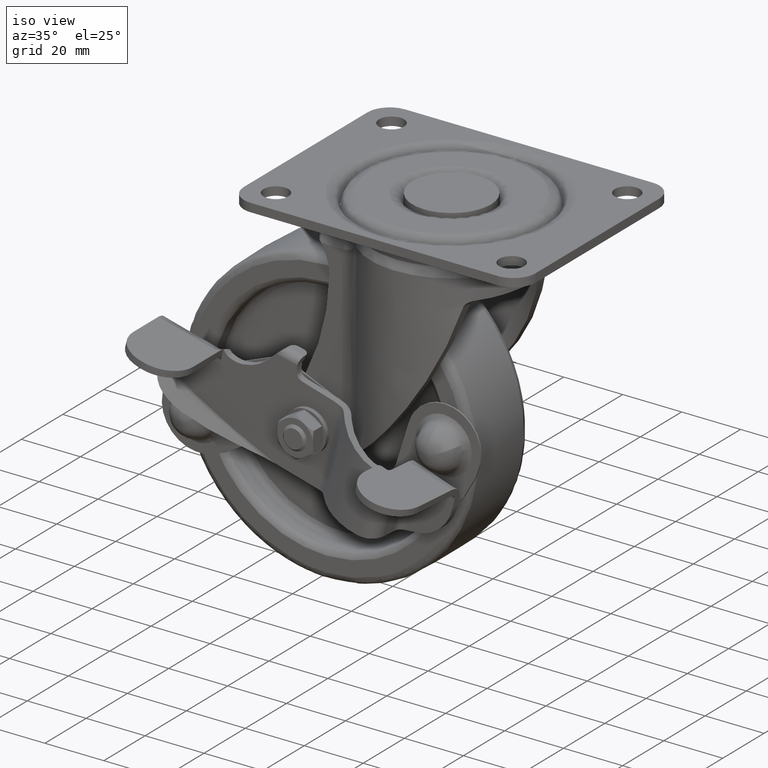
[diagram: clean part render]
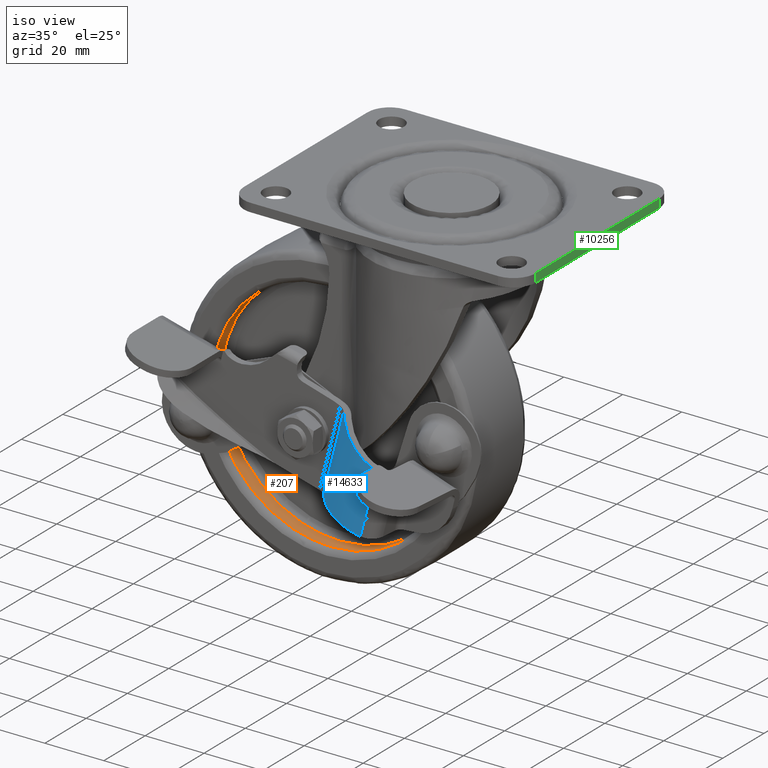
[diagram: same view with three faces highlighted in distinct colors, each labeled with its STEP entity id]
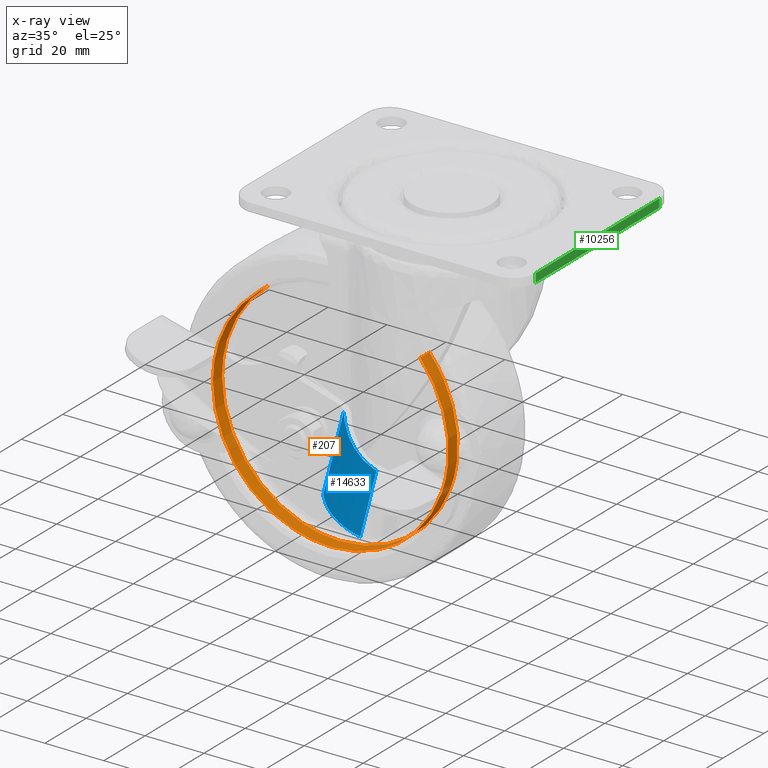
[diagram: x-ray of the same camera — body ghosted, the three highlighted faces saturated]
A machine part, iso view with three faces highlighted in distinct colors.
The next image is the same camera in x-ray (body ghosted, the three faces saturated) — at least one of them is partly hidden behind the body in this view.
Their STEP definitions:

[orange] entity #207 — the highlighted face is a freeform B-spline surface patch.
#44=CARTESIAN_POINT('',(-57.195413265717157,-6.887499999548891,-41.147604258645742));
#45=CARTESIAN_POINT('',(-58.107009251488449,-6.887499999548891,-41.840078411140524));
#46=CARTESIAN_POINT('',(-58.977508933207417,-6.887499999548891,-42.583555375998777));
#47=CARTESIAN_POINT('',(-89.393747557208656,-6.887499999548890,-68.561477309206111));
#48=CARTESIAN_POINT('',(-63.415825624001322,-6.887499999548891,-98.977715933207350));
#49=CARTESIAN_POINT('',(-37.437903690793995,-6.887499999548890,-129.393954557208590));
#50=CARTESIAN_POINT('',(-7.021665066792757,-6.887499999548891,-103.416032624001300));
#51=CARTESIAN_POINT('',(23.394573557208485,-6.887499999548890,-77.438110690793920));
#52=CARTESIAN_POINT('',(-2.583348375998860,-6.887499999548891,-47.021872066792682));
#53=CARTESIAN_POINT('',(-57.195413265717157,-11.615312501448374,-41.147604258645742));
#54=CARTESIAN_POINT('',(-58.107009251488449,-11.615312501448374,-41.840078411140524));
#55=CARTESIAN_POINT('',(-58.977508933207417,-11.615312501448370,-42.583555375998777));
#56=CARTESIAN_POINT('',(-89.393747557208656,-11.615312501448374,-68.561477309206111));
#57=CARTESIAN_POINT('',(-63.415825624001322,-11.615312501448370,-98.977715933207350));
#58=CARTESIAN_POINT('',(-37.437903690793995,-11.615312501448374,-129.393954557208590));
#59=CARTESIAN_POINT('',(-7.021665066792757,-11.615312501448370,-103.416032624001300));
#60=CARTESIAN_POINT('',(23.394573557208485,-11.615312501448374,-77.438110690793920));
#61=CARTESIAN_POINT('',(-2.583348375998860,-11.615312501448370,-47.021872066792682));
#69=(BOUNDED_SURFACE()B_SPLINE_SURFACE(2,1,((#44,#53),(#45,#54),(#46,#55),(#47,#56),(#48,#57),(#49,#58),(#50,#59),(#51,#60),(#52,#61)),.UNSPECIFIED.,.F.,.F.,.U.)B_SPLINE_SURFACE_WITH_KNOTS((3,2,2,2,3),(2,2),(0.0,2.650966799187811,68.925136778883001,135.199306758578190,201.473476738273400),(0.0,4.727812501899481),.UNSPECIFIED.)GEOMETRIC_REPRESENTATION_ITEM()RATIONAL_B_SPLINE_SURFACE(((0.977505800795127,0.977505800795127),(0.988284271247462,0.988284271247462),(1.0,1.0),(0.707106781186548,0.707106781186548),(1.0,1.0),(0.707106781186548,0.707106781186548),(1.0,1.0),(0.707106781186548,0.707106781186548),(1.0,1.0)))REPRESENTATION_ITEM('')SURFACE());
#70=CARTESIAN_POINT('',(-57.195413340590051,-6.999999999928793,-41.147604315521257));
#71=VERTEX_POINT('',#70);
#72=CARTESIAN_POINT('',(-72.999587000000076,-6.999999999650401,-72.999794000000009));
#73=VERTEX_POINT('',#72);
#74=CARTESIAN_POINT('',(-57.195413340590051,-6.999999999928793,-41.147604315521257));
#75=CARTESIAN_POINT('',(-59.640969421616703,-6.999999999912602,-43.004448923106636));
#76=CARTESIAN_POINT('',(-63.333869706376333,-6.999999999881532,-46.549802614734013));
#77=CARTESIAN_POINT('',(-67.833106346299132,-6.999999999825969,-52.914736289219817));
#78=CARTESIAN_POINT('',(-70.743465383803525,-6.999999999771743,-59.112809435374999));
#79=CARTESIAN_POINT('',(-72.592599236844549,-6.999999999710838,-66.091167120750299));
#80=CARTESIAN_POINT('',(-72.999845736485341,-6.999999999671267,-70.600917400487859));
#81=CARTESIAN_POINT('',(-72.999587000000076,-6.999999999650401,-72.999794000000009));
#82=B_SPLINE_CURVE_WITH_KNOTS('',3,(#74,#75,#76,#77,#78,#79,#80,#81),.UNSPECIFIED.,.F.,.U.,(4,1,1,1,1,4),(0.000000072693418,9.211635541973998,15.256788921254310,23.316940702688932,29.649951792193960,36.846539430953463),.UNSPECIFIED.);
#83=EDGE_CURVE('',#71,#73,#82,.T.);
#84=ORIENTED_EDGE('',*,*,#83,.F.);
#85=CARTESIAN_POINT('',(-57.195413339687967,-11.500000000272371,-41.147604314836023));
#86=VERTEX_POINT('',#85);
#87=CARTESIAN_POINT('',(-57.195413340590051,-6.999999999928793,-41.147604315521257));
#88=CARTESIAN_POINT('',(-57.195413339687967,-11.500000000272371,-41.147604314836023));
#89=QUASI_UNIFORM_CURVE('',1,(#87,#88),.UNSPECIFIED.,.F.,.U.);
#90=EDGE_CURVE('',#71,#86,#89,.T.);
#91=ORIENTED_EDGE('',*,*,#90,.T.);
#92=CARTESIAN_POINT('',(-72.999587000000076,-11.500000001337110,-72.999794000000009));
#93=VERTEX_POINT('',#92);
#94=CARTESIAN_POINT('',(-57.195413339687967,-11.500000000272371,-41.147604314836023));
#95=CARTESIAN_POINT('',(-59.946844323741622,-11.500000000342199,-43.236405770222859));
#96=CARTESIAN_POINT('',(-63.456798442841233,-11.500000000458110,-46.705002304220073));
#97=CARTESIAN_POINT('',(-67.409285888582787,-11.500000000648010,-52.383762011432367));
#98=CARTESIAN_POINT('',(-70.290193418944853,-11.500000000833550,-57.935700692767917));
#99=CARTESIAN_POINT('',(-72.475918928822495,-11.500000001070839,-65.035614518479420));
#100=CARTESIAN_POINT('',(-72.999836849366559,-11.500000001250591,-70.409024045201534));
#101=CARTESIAN_POINT('',(-72.999587000000076,-11.500000001337110,-72.999794000000009));
#102=B_SPLINE_CURVE_WITH_KNOTS('',3,(#94,#95,#96,#97,#98,#99,#100,#101),.UNSPECIFIED.,.F.,.U.,(4,1,1,1,1,4),(0.000000072685815,10.363090498923890,14.681084284147509,20.726150331383749,29.074232023329309,36.846539432086317),.UNSPECIFIED.);
#103=EDGE_CURVE('',#86,#93,#102,.T.);
#104=ORIENTED_EDGE('',*,*,#103,.T.);
#105=CARTESIAN_POINT('',(-32.999587000000091,-11.500000000000000,-112.999793999999990));
#106=VERTEX_POINT('',#105);
#107=CARTESIAN_POINT('',(-72.999587000000076,-11.500000001337110,-72.999794000000009));
#108=CARTESIAN_POINT('',(-73.000323713449220,-11.500000001230459,-76.190542129254297));
#109=CARTESIAN_POINT('',(-72.379459111504033,-11.500000001058110,-81.344326625026781));
#110=CARTESIAN_POINT('',(-69.929773957902086,-11.500000000805160,-88.915346093015955));
#111=CARTESIAN_POINT('',(-67.060505098404974,-11.500000000625580,-94.283698438202066));
#112=CARTESIAN_POINT('',(-63.468729553001239,-11.500000000465789,-99.064262186574069));
#113=CARTESIAN_POINT('',(-59.214004440522238,-11.500000000317490,-103.506706443728110));
#114=CARTESIAN_POINT('',(-54.144088634480553,-11.500000000194721,-107.171224918586800));
#115=CARTESIAN_POINT('',(-48.427239283608209,-11.500000000099490,-110.026329265939910));
#116=CARTESIAN_POINT('',(-41.916702615345322,-11.500000000023631,-112.289041890086690));
#117=CARTESIAN_POINT('',(-36.435802448697821,-11.500000000000110,-113.000751344793600));
#118=CARTESIAN_POINT('',(-32.999587000000091,-11.500000000000000,-112.999793999999990));
#119=B_SPLINE_CURVE_WITH_KNOTS('',3,(#107,#108,#109,#110,#111,#112,#113,#114,#115,#116,#117,#118),.UNSPECIFIED.,.F.,.U.,(4,1,1,1,1,1,1,1,1,4),(0.000000187848613,9.572042206756301,15.462552433868691,23.807479990901228,27.734507954839302,33.379368865293571,42.215193227224830,46.387646438965447,52.523601262055102,62.831951636743483),.UNSPECIFIED.);
#120=EDGE_CURVE('',#93,#106,#119,.T.);
#121=ORIENTED_EDGE('',*,*,#120,.T.);
#122=CARTESIAN_POINT('',(6.732878551396033,-11.500000001402039,-77.618363173144417));
#123=VERTEX_POINT('',#122);
#124=CARTESIAN_POINT('',(-32.999587000000091,-11.500000000000000,-112.999793999999990));
#125=CARTESIAN_POINT('',(-30.574454446466309,-11.500000000000000,-113.000026607410900));
#126=CARTESIAN_POINT('',(-26.482152671332059,-11.500000000014770,-112.626430618432490));
#127=CARTESIAN_POINT('',(-20.145884699011511,-11.500000000077449,-111.046322799853300));
#128=CARTESIAN_POINT('',(-14.673827200665770,-11.500000000168461,-108.746530082510500));
#129=CARTESIAN_POINT('',(-9.515596425510770,-11.500000000295939,-105.533729942069100));
#130=CARTESIAN_POINT('',(-5.309447835128827,-11.500000000434319,-102.037939592429400));
#131=CARTESIAN_POINT('',(-1.925468689512853,-11.500000000580970,-98.338837212911997));
#132=CARTESIAN_POINT('',(1.079430870111440,-11.500000000747161,-94.143877191189063));
#133=CARTESIAN_POINT('',(3.758576211701439,-11.500000000943031,-89.199636808231205));
#134=CARTESIAN_POINT('',(5.772705121325089,-11.500000001170820,-83.457782694528476));
#135=CARTESIAN_POINT('',(6.522924338759332,-11.500000001330370,-79.425033172477981));
#136=CARTESIAN_POINT('',(6.732878551396033,-11.500000001402039,-77.618363173144417));
#137=B_SPLINE_CURVE_WITH_KNOTS('',3,(#124,#125,#126,#127,#128,#129,#130,#131,#132,#133,#134,#135,#136),.UNSPECIFIED.,.F.,.U.,(4,1,1,1,1,1,1,1,1,1,4),(-0.000003626786473,7.275398297098832,12.277249702036070,19.552681095450058,25.009257846133298,30.465751006107709,35.922300921208269,40.014738999037121,45.926021943838961,52.746748761316411,58.203270923670239),.UNSPECIFIED.);
#138=EDGE_CURVE('',#106,#123,#137,.T.);
#139=ORIENTED_EDGE('',*,*,#138,.T.);
#140=CARTESIAN_POINT('',(-2.583348338008113,-11.500000000043180,-47.021872111274106));
#141=VERTEX_POINT('',#140);
#142=CARTESIAN_POINT('',(6.732878551396033,-11.500000001402039,-77.618363173144417));
#143=CARTESIAN_POINT('',(7.020063954459364,-11.500000001269409,-75.150118100846711));
#144=CARTESIAN_POINT('',(7.126332875003446,-11.500000001024929,-70.418125415638073));
#145=CARTESIAN_POINT('',(6.109506433731744,-11.500000000712770,-63.875851226217883));
#146=CARTESIAN_POINT('',(4.127846847272541,-11.500000000438410,-57.655450561984203));
#147=CARTESIAN_POINT('',(1.288709718508165,-11.500000000214870,-52.053465600539802));
#148=CARTESIAN_POINT('',(-1.303401922217345,-11.500000000091349,-48.520415564459533));
#149=CARTESIAN_POINT('',(-2.583348338008113,-11.500000000043180,-47.021872111274106));
#150=B_SPLINE_CURVE_WITH_KNOTS('',3,(#142,#143,#144,#145,#146,#147,#148,#149),.UNSPECIFIED.,.F.,.U.,(4,1,1,1,1,4),(0.000000057043209,7.454645222097078,14.138144633414020,19.793346486760761,26.990978888983221,32.903284128596709),.UNSPECIFIED.);
#151=EDGE_CURVE('',#123,#141,#150,.T.);
#152=ORIENTED_EDGE('',*,*,#151,.T.);
#153=CARTESIAN_POINT('',(-2.583348337544813,-6.999999999987502,-47.021872111816577));
#154=VERTEX_POINT('',#153);
#155=CARTESIAN_POINT('',(-2.583348337544813,-6.999999999987502,-47.021872111816577));
#156=CARTESIAN_POINT('',(-2.583348338008113,-11.500000000043180,-47.021872111274106));
#157=QUASI_UNIFORM_CURVE('',1,(#155,#156),.UNSPECIFIED.,.F.,.U.);
#158=EDGE_CURVE('',#154,#141,#157,.T.);
#159=ORIENTED_EDGE('',*,*,#158,.F.);
#160=CARTESIAN_POINT('',(6.732878551395958,-6.999999999594090,-77.618363173145042));
#161=VERTEX_POINT('',#160);
#162=CARTESIAN_POINT('',(6.732878551395958,-6.999999999594090,-77.618363173145042));
#163=CARTESIAN_POINT('',(6.950591430785794,-6.999999999623229,-75.745906706600110));
#164=CARTESIAN_POINT('',(7.140073734621618,-6.999999999686718,-71.541054580795759));
#165=CARTESIAN_POINT('',(6.397398376123858,-6.999999999779435,-64.960192980743258));
#166=CARTESIAN_POINT('',(4.532864959209531,-6.999999999860299,-58.693154425129023));
#167=CARTESIAN_POINT('',(1.602611594016995,-6.999999999932081,-52.573994041794599));
#168=CARTESIAN_POINT('',(-0.913635095008735,-6.999999999969265,-48.976348847641937));
#169=CARTESIAN_POINT('',(-2.583348337544813,-6.999999999987502,-47.021872111816577));
#170=B_SPLINE_CURVE_WITH_KNOTS('',3,(#162,#163,#164,#165,#166,#167,#168,#169),.UNSPECIFIED.,.F.,.U.,(4,1,1,1,1,4),(0.000000057047082,5.655232058603964,12.595824029883429,19.793346486331910,25.191579145873799,32.903284127883872),.UNSPECIFIED.);
#171=EDGE_CURVE('',#161,#154,#170,.T.);
#172=ORIENTED_EDGE('',*,*,#171,.F.);
#173=CARTESIAN_POINT('',(-32.999587000000091,-7.0,-112.999793999999990));
#174=VERTEX_POINT('',#173);
#175=CARTESIAN_POINT('',(-32.999587000000091,-7.0,-112.999793999999990));
#176=CARTESIAN_POINT('',(-30.574449614875920,-6.999999999999958,-113.000054075613900));
#177=CARTESIAN_POINT('',(-26.482160372142200,-6.999999999995805,-112.626392037018600));
#178=CARTESIAN_POINT('',(-20.145881296254089,-6.999999999977566,-111.046354820196900));
#179=CARTESIAN_POINT('',(-14.393187954121901,-6.999999999949799,-108.628595331054700));
#180=CARTESIAN_POINT('',(-9.011226644078166,-6.999999999910513,-105.190978410070600));
#181=CARTESIAN_POINT('',(-4.427241225698134,-6.999999999864555,-101.201480491777500));
#182=CARTESIAN_POINT('',(-0.674810659867545,-6.999999999814323,-96.807901680122427));
#183=CARTESIAN_POINT('',(2.225867584447431,-6.999999999760997,-92.171251409677126));
#184=CARTESIAN_POINT('',(5.099229167119365,-6.999999999689997,-85.973095147388761));
#185=CARTESIAN_POINT('',(6.331353413497105,-6.999999999633778,-81.081404630149279));
#186=CARTESIAN_POINT('',(6.732878551395958,-6.999999999594090,-77.618363173145042));
#187=B_SPLINE_CURVE_WITH_KNOTS('',3,(#175,#176,#177,#178,#179,#180,#181,#182,#183,#184,#185,#186),.UNSPECIFIED.,.F.,.U.,(4,1,1,1,1,1,1,1,1,4),(-0.000003626793379,7.275398297092259,12.277249702030000,19.552681095444591,25.918682135555539,31.375168894853509,37.741162202472928,43.197739509300277,47.744881672627052,58.203270923669493),.UNSPECIFIED.);
#188=EDGE_CURVE('',#174,#161,#187,.T.);
#189=ORIENTED_EDGE('',*,*,#188,.F.);
#190=CARTESIAN_POINT('',(-72.999587000000076,-6.999999999650401,-72.999794000000009));
#191=CARTESIAN_POINT('',(-73.000323713449220,-6.999999999678304,-76.190542129254325));
#192=CARTESIAN_POINT('',(-72.379459111511835,-6.999999999723294,-81.344326625022632));
#193=CARTESIAN_POINT('',(-69.929773957852348,-6.999999999789551,-88.915346093041975));
#194=CARTESIAN_POINT('',(-67.060505098572463,-6.999999999836390,-94.283698438114399));
#195=CARTESIAN_POINT('',(-63.468729553614097,-6.999999999878179,-99.064262186154437));
#196=CARTESIAN_POINT('',(-59.214004437012278,-6.999999999917120,-103.506706446107000));
#197=CARTESIAN_POINT('',(-54.144088639623753,-6.999999999948987,-107.171224914291500));
#198=CARTESIAN_POINT('',(-48.427239286641942,-6.999999999974065,-110.026329269279700));
#199=CARTESIAN_POINT('',(-41.916702573399618,-6.999999999993712,-112.289041889583200));
#200=CARTESIAN_POINT('',(-36.435802490908252,-7.000000000000097,-113.000751325442910));
#201=CARTESIAN_POINT('',(-32.999587000000091,-7.0,-112.999793999999990));
#202=B_SPLINE_CURVE_WITH_KNOTS('',3,(#190,#191,#192,#193,#194,#195,#196,#197,#198,#199,#200,#201),.UNSPECIFIED.,.F.,.U.,(4,1,1,1,1,1,1,1,1,4),(0.000000187848613,9.572042206756301,15.462552433868691,23.807479990901228,27.734507954839302,33.379368865293571,42.215193227224830,46.387646438965447,52.523601262055102,62.831951636743483),.UNSPECIFIED.);
#203=EDGE_CURVE('',#73,#174,#202,.T.);
#204=ORIENTED_EDGE('',*,*,#203,.F.);
#205=EDGE_LOOP('',(#84,#91,#104,#121,#139,#152,#159,#172,#189,#204));
#206=FACE_OUTER_BOUND('',#205,.T.);
#207=ADVANCED_FACE('',(#206),#69,.F.);

[blue] entity #14633 — the highlighted face is a freeform B-spline surface patch.
#13725=CARTESIAN_POINT('',(-8.376690590934580,-32.300010000000000,-95.353925775061185));
#13726=VERTEX_POINT('',#13725);
#13732=CARTESIAN_POINT('',(-9.412487268239199,-32.279031902747349,-95.247503691022501));
#13733=VERTEX_POINT('',#13732);
#13734=CARTESIAN_POINT('',(-9.412487268239199,-32.279031902747349,-95.247503691022501));
#13735=CARTESIAN_POINT('',(-8.376690590934580,-32.300010000000000,-95.353925775061185));
#13736=QUASI_UNIFORM_CURVE('',1,(#13734,#13735),.UNSPECIFIED.,.F.,.U.);
#13737=EDGE_CURVE('',#13733,#13726,#13736,.T.);
#13764=CARTESIAN_POINT('',(-3.690822887041210,-32.285608167887062,-73.464890650728393));
#13765=VERTEX_POINT('',#13764);
#13771=CARTESIAN_POINT('',(-2.866288052922065,-32.300010000000000,-73.685764258554613));
#13772=VERTEX_POINT('',#13771);
#13773=CARTESIAN_POINT('',(-3.690822887041210,-32.285608167887062,-73.464890650728393));
#13774=CARTESIAN_POINT('',(-2.866288052922065,-32.300010000000000,-73.685764258554613));
#13775=QUASI_UNIFORM_CURVE('',1,(#13773,#13774),.UNSPECIFIED.,.F.,.U.);
#13776=EDGE_CURVE('',#13765,#13772,#13775,.T.);
#13826=CARTESIAN_POINT('',(-26.973101488956900,-23.625030273744951,-91.101222384940598));
#13827=VERTEX_POINT('',#13826);
#13833=CARTESIAN_POINT('',(-27.270668123846750,-23.264286678571349,-91.019335257381499));
#13834=VERTEX_POINT('',#13833);
#13835=CARTESIAN_POINT('',(-26.973101488956900,-23.625030273744951,-91.101222384940598));
#13836=CARTESIAN_POINT('',(-27.270668123846750,-23.264286678571349,-91.019335257381499));
#13837=QUASI_UNIFORM_CURVE('',1,(#13835,#13836),.UNSPECIFIED.,.F.,.U.);
#13838=EDGE_CURVE('',#13827,#13834,#13837,.T.);
#13881=CARTESIAN_POINT('',(-19.877331015723250,-29.413598532842698,-92.961718330335700));
#13882=VERTEX_POINT('',#13881);
#13888=CARTESIAN_POINT('',(-26.973101488956900,-23.625030273744951,-91.101222384940598));
#13889=CARTESIAN_POINT('',(-26.291271971075389,-24.436718795300870,-91.290960750591765));
#13890=CARTESIAN_POINT('',(-24.159091977434979,-26.666614742352522,-91.871065532391739));
#13891=CARTESIAN_POINT('',(-21.644495048243900,-28.460420603410860,-92.519334222890748));
#13892=CARTESIAN_POINT('',(-19.877331015723250,-29.413598532842698,-92.961718330335700));
#13893=B_SPLINE_CURVE_WITH_KNOTS('',3,(#13888,#13889,#13890,#13891,#13892),.UNSPECIFIED.,.F.,.U.,(4,1,4),(0.000000015255919,3.230767128100091,9.398588300411896),.UNSPECIFIED.);
#13894=EDGE_CURVE('',#13827,#13882,#13893,.T.);
#13915=CARTESIAN_POINT('',(-20.342208934787550,-23.264286678571398,-63.775051063362213));
#13916=VERTEX_POINT('',#13915);
#13925=CARTESIAN_POINT('',(-17.871449765333050,-26.130000987205701,-65.511366142957499));
#13926=VERTEX_POINT('',#13925);
#13927=CARTESIAN_POINT('',(-17.871449765333050,-26.130000987205701,-65.511366142957499));
#13928=CARTESIAN_POINT('',(-18.724459876969760,-25.272071958073809,-64.826288150225608));
#13929=CARTESIAN_POINT('',(-19.554189865998321,-24.309665015463700,-64.243227198120607));
#13930=CARTESIAN_POINT('',(-20.342208934787550,-23.264286678571398,-63.775051063362213));
#13931=B_SPLINE_CURVE_WITH_KNOTS('',3,(#13927,#13928,#13929,#13930),.UNSPECIFIED.,.F.,.U.,(4,4),(4.819002E-009,4.170952339376449),.UNSPECIFIED.);
#13932=EDGE_CURVE('',#13926,#13916,#13931,.T.);
#13976=CARTESIAN_POINT('',(-19.877331015723250,-29.413598532842698,-92.961718330335700));
#13977=CARTESIAN_POINT('',(-18.576619100515270,-30.115687782378370,-93.289517488337097));
#13978=CARTESIAN_POINT('',(-15.212643548701889,-31.546891441533720,-94.088718676637754));
#13979=CARTESIAN_POINT('',(-11.585123280038150,-32.190325576572860,-94.836876754465152));
#13980=CARTESIAN_POINT('',(-9.412487268239199,-32.279031902747349,-95.247503691022501));
#13981=B_SPLINE_CURVE_WITH_KNOTS('',3,(#13976,#13977,#13978,#13979,#13980),.UNSPECIFIED.,.F.,.U.,(4,1,4),(8.401845E-009,4.542074723441797,11.180490960203599),.UNSPECIFIED.);
#13982=EDGE_CURVE('',#13882,#13733,#13981,.T.);
#14001=CARTESIAN_POINT('',(-7.709454713899079,-31.777396535958900,-71.973518103840590));
#14002=VERTEX_POINT('',#14001);
#14003=CARTESIAN_POINT('',(-7.709454713899079,-31.777396535958900,-71.973518103840590));
#14004=CARTESIAN_POINT('',(-6.436898121349773,-32.065326773879313,-72.588979375796015));
#14005=CARTESIAN_POINT('',(-5.083373588894036,-32.236558913835417,-73.091359863115542));
#14006=CARTESIAN_POINT('',(-3.690822887041210,-32.285608167887062,-73.464890650728393));
#14007=B_SPLINE_CURVE_WITH_KNOTS('',3,(#14003,#14004,#14005,#14006),.UNSPECIFIED.,.F.,.U.,(4,4),(4.734347E-009,4.327794115442602),.UNSPECIFIED.);
#14008=EDGE_CURVE('',#14002,#13765,#14007,.T.);
#14034=CARTESIAN_POINT('',(-17.871449765333050,-26.130000987205701,-65.511366142957499));
#14035=CARTESIAN_POINT('',(-16.692407481280132,-27.343319437782942,-66.502723566109225));
#14036=CARTESIAN_POINT('',(-13.634521528102850,-29.769210523011289,-68.761775208274102));
#14037=CARTESIAN_POINT('',(-9.921777703443874,-31.266268233300419,-70.877634978254093));
#14038=CARTESIAN_POINT('',(-7.709454713899079,-31.777396535958900,-71.973518103840590));
#14039=B_SPLINE_CURVE_WITH_KNOTS('',3,(#14034,#14035,#14036,#14037,#14038),.UNSPECIFIED.,.F.,.U.,(4,1,4),(0.000000024220354,5.882640308510493,13.445973772556860),.UNSPECIFIED.);
#14040=EDGE_CURVE('',#13926,#14002,#14039,.T.);
#14595=CARTESIAN_POINT('',(-20.342208934787550,-23.264286678571398,-63.775051063362213));
#14596=CARTESIAN_POINT('',(-27.270668123846750,-23.264286678571349,-91.019335257381499));
#14597=QUASI_UNIFORM_CURVE('',1,(#14595,#14596),.UNSPECIFIED.,.F.,.U.);
#14598=EDGE_CURVE('',#13916,#13834,#14597,.T.);
#14603=CARTESIAN_POINT('',(-20.576167103101142,-22.749630306931660,-62.988770836397237));
#14604=CARTESIAN_POINT('',(-27.871704827666480,-22.749630306931660,-91.676491683496252));
#14605=CARTESIAN_POINT('',(-12.812006397008389,-32.821206082915992,-64.963264649718653));
#14606=CARTESIAN_POINT('',(-20.107544121573731,-32.821206082915992,-93.650985496817640));
#14607=CARTESIAN_POINT('',(-0.350891937557454,-32.277413285014397,-68.132234785533569));
#14608=CARTESIAN_POINT('',(-7.646429662122809,-32.277413285014390,-96.819955632632528));
#14616=(BOUNDED_SURFACE()B_SPLINE_SURFACE(1,2,((#14603,#14605,#14607),(#14604,#14606,#14608)),.UNSPECIFIED.,.F.,.F.,.U.)B_SPLINE_SURFACE_WITH_KNOTS((2,2),(3,3),(0.0,29.600847928592099),(0.0,24.259315852419821),.UNSPECIFIED.)GEOMETRIC_REPRESENTATION_ITEM()RATIONAL_B_SPLINE_SURFACE(((1.0,0.887449543238178,0.991342398095358),(1.0,0.887449543238178,0.991342398095358)))REPRESENTATION_ITEM('')SURFACE());
#14617=ORIENTED_EDGE('',*,*,#14040,.F.);
#14618=ORIENTED_EDGE('',*,*,#13932,.T.);
#14619=ORIENTED_EDGE('',*,*,#14598,.T.);
#14620=ORIENTED_EDGE('',*,*,#13838,.F.);
#14621=ORIENTED_EDGE('',*,*,#13894,.T.);
#14622=ORIENTED_EDGE('',*,*,#13982,.T.);
#14623=ORIENTED_EDGE('',*,*,#13737,.T.);
#14624=CARTESIAN_POINT('',(-2.866288052922065,-32.300010000000000,-73.685764258554613));
#14625=CARTESIAN_POINT('',(-8.376690590934580,-32.300010000000000,-95.353925775061185));
#14626=QUASI_UNIFORM_CURVE('',1,(#14624,#14625),.UNSPECIFIED.,.F.,.U.);
#14627=EDGE_CURVE('',#13772,#13726,#14626,.T.);
#14628=ORIENTED_EDGE('',*,*,#14627,.F.);
#14629=ORIENTED_EDGE('',*,*,#13776,.F.);
#14630=ORIENTED_EDGE('',*,*,#14008,.F.);
#14631=EDGE_LOOP('',(#14617,#14618,#14619,#14620,#14621,#14622,#14623,#14628,#14629,#14630));
#14632=FACE_OUTER_BOUND('',#14631,.T.);
#14633=ADVANCED_FACE('',(#14632),#14616,.T.);

[green] entity #10256 — the highlighted face is a freeform B-spline surface patch.
#10002=CARTESIAN_POINT('',(49.500000000000000,-30.0,0.0));
#10003=VERTEX_POINT('',#10002);
#10017=CARTESIAN_POINT('',(49.500000000000000,30.0,0.0));
#10018=VERTEX_POINT('',#10017);
#10019=CARTESIAN_POINT('',(49.500000000000000,-30.0,0.0));
#10020=CARTESIAN_POINT('',(49.500000000000000,30.0,0.0));
#10021=QUASI_UNIFORM_CURVE('',1,(#10019,#10020),.UNSPECIFIED.,.F.,.U.);
#10022=EDGE_CURVE('',#10003,#10018,#10021,.T.);
#10093=CARTESIAN_POINT('',(49.500000000000000,30.0,-2.899615000000000));
#10094=VERTEX_POINT('',#10093);
#10107=CARTESIAN_POINT('',(49.500000000000000,-30.0,-2.899615000000000));
#10108=VERTEX_POINT('',#10107);
#10109=CARTESIAN_POINT('',(49.500000000000000,-30.0,-2.899615000000000));
#10110=CARTESIAN_POINT('',(49.500000000000000,30.0,-2.899615000000000));
#10111=QUASI_UNIFORM_CURVE('',1,(#10109,#10110),.UNSPECIFIED.,.F.,.U.);
#10112=EDGE_CURVE('',#10108,#10094,#10111,.T.);
#10227=CARTESIAN_POINT('',(49.500000000000000,30.0,-2.899615000000000));
#10228=CARTESIAN_POINT('',(49.500000000000000,30.0,0.0));
#10229=QUASI_UNIFORM_CURVE('',1,(#10227,#10228),.UNSPECIFIED.,.F.,.U.);
#10230=EDGE_CURVE('',#10094,#10018,#10229,.T.);
#10241=CARTESIAN_POINT('',(49.500000000000000,-32.996999883708362,-3.044450818069004));
#10242=CARTESIAN_POINT('',(49.500000000000000,32.997001493033771,-3.044450818069004));
#10243=CARTESIAN_POINT('',(49.500000000000000,-32.996999883708362,0.144835843993583));
#10244=CARTESIAN_POINT('',(49.500000000000000,32.997001493033771,0.144835843993583));
#10245=B_SPLINE_SURFACE_WITH_KNOTS('',1,1,((#10241,#10243),(#10242,#10244)),.UNSPECIFIED.,.F.,.F.,.U.,(2,2),(2,2),(0.0,65.994001376742119),(0.0,3.189286662062588),.UNSPECIFIED.);
#10246=ORIENTED_EDGE('',*,*,#10022,.F.);
#10247=CARTESIAN_POINT('',(49.500000000000000,-30.0,-2.899615000000000));
#10248=CARTESIAN_POINT('',(49.500000000000000,-30.0,0.0));
#10249=QUASI_UNIFORM_CURVE('',1,(#10247,#10248),.UNSPECIFIED.,.F.,.U.);
#10250=EDGE_CURVE('',#10108,#10003,#10249,.T.);
#10251=ORIENTED_EDGE('',*,*,#10250,.F.);
#10252=ORIENTED_EDGE('',*,*,#10112,.T.);
#10253=ORIENTED_EDGE('',*,*,#10230,.T.);
#10254=EDGE_LOOP('',(#10246,#10251,#10252,#10253));
#10255=FACE_OUTER_BOUND('',#10254,.T.);
#10256=ADVANCED_FACE('',(#10255),#10245,.T.);